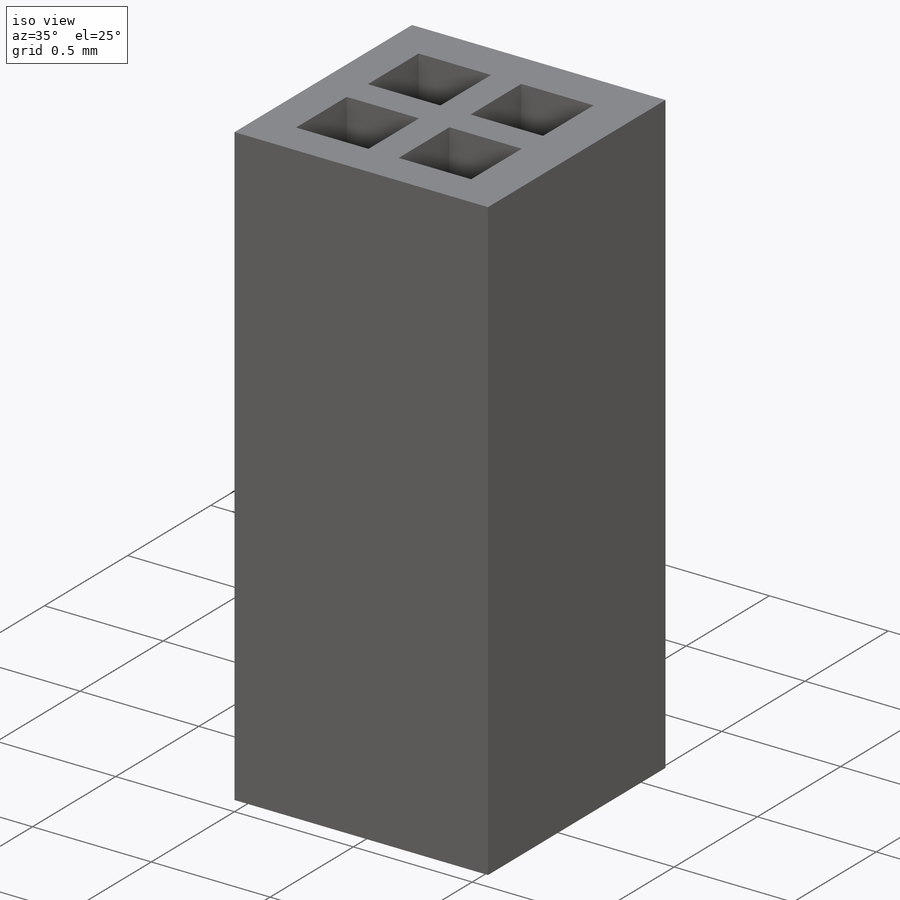
[diagram: iso view]
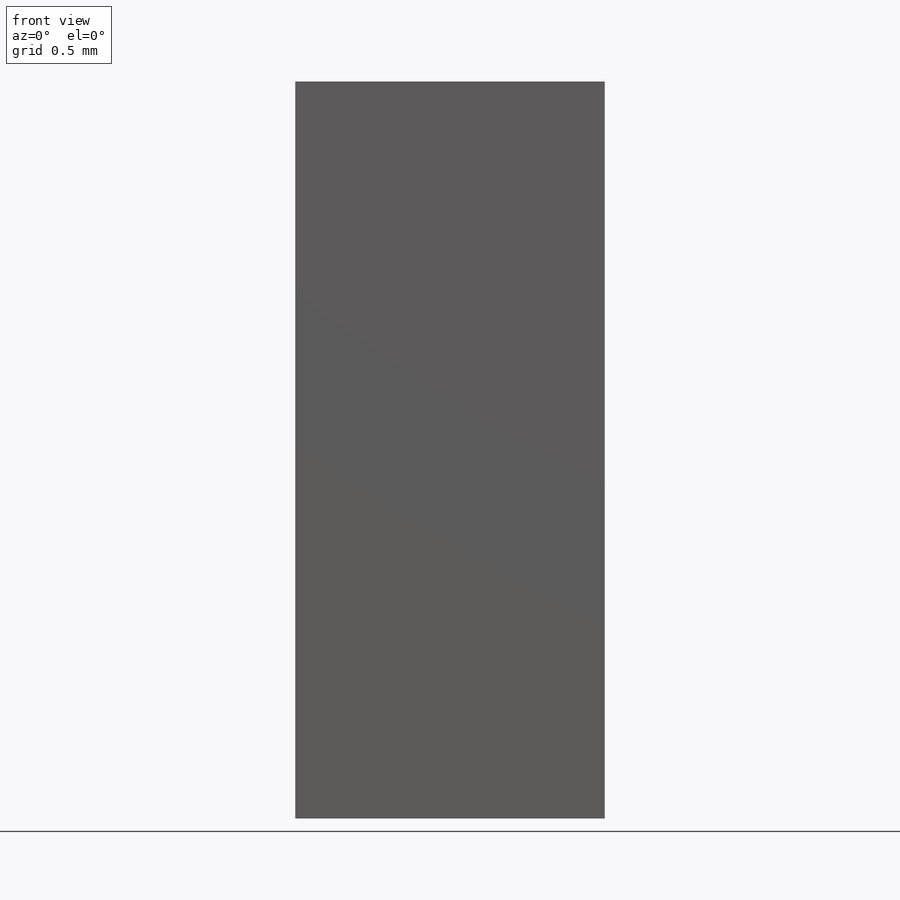
[diagram: front view]
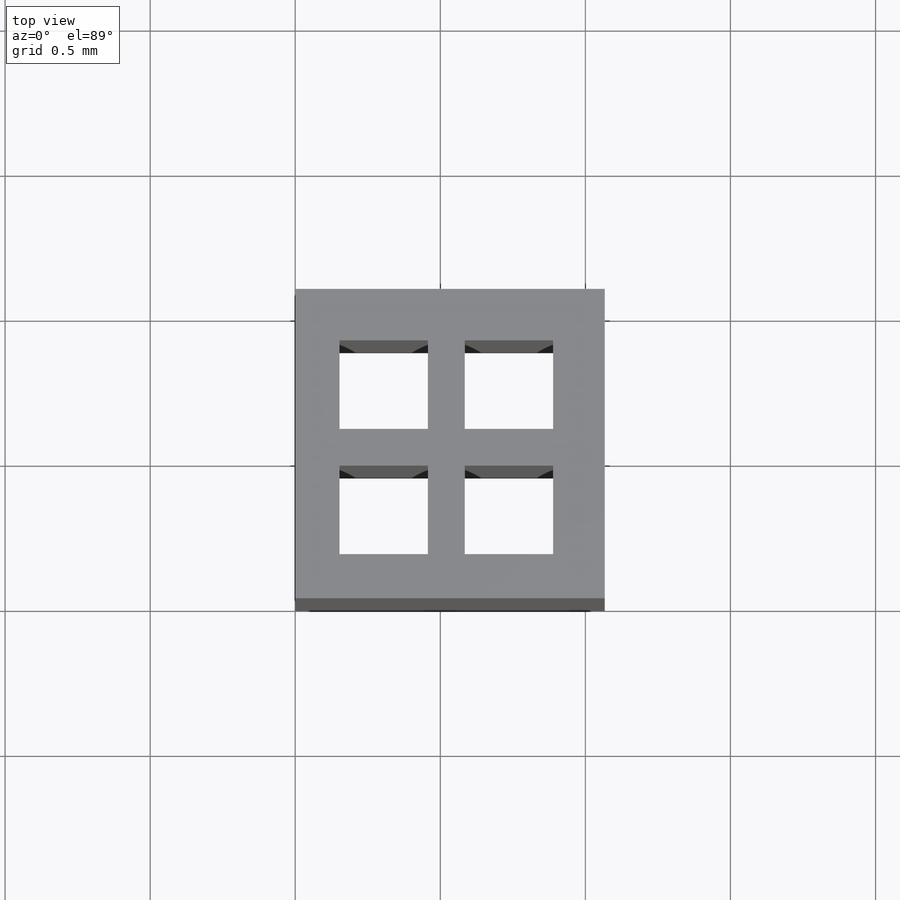
[diagram: top view]
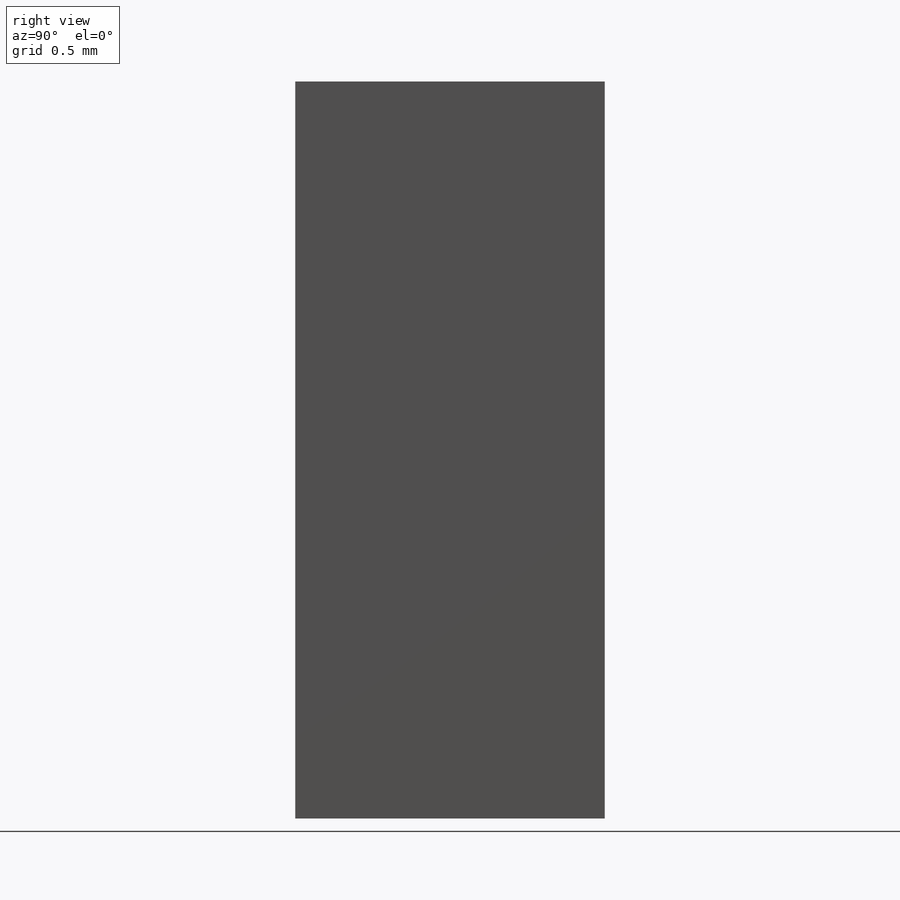
[diagram: right view]
SOLIDWORKS PART (.sldprt)
format: sldprt  version: not decoded by parser v0  size: 228,864 bytes
history: native  units: mm
features: sketch x3, material x1, extrude x1, pattern_linear x1, plane x1 (+11 scaffold rows collapsed)
feature tree (18):
  scaffold x11  (default folders/planes/origin — collapsed)
  material  "Material <not specified>"
  sketch  "Sketch1"  dims[D1=1.0668mm D2=1.0668mm]
  extrude  "Boss-Extrude1"  Depth=2.54mm
  sketch  "Sketch2"  dims[D1=0.3048mm D2=0.3048mm D3=0.1524mm D4=0.1524mm D7=0.127mm D5=2.0 D6=2.0]
  sketch  "Sketch3"  dims[D3=0.0mm D4=0.0mm D5=0.3048mm D6=0.1524mm D1=2.0 D2=2.0]
  pattern_linear  "LPattern1"  Count1=2 Count2=2 Spacing1=0.4318mm Spacing2=0.4318mm
  plane  "Plane1"  Offset=1.27mm
decode coverage: 5 of 5 modeling features carry decoded parameters
note: suppression state not decoded; provenance and decode notes live in map.json
